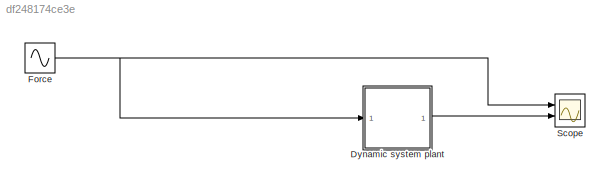
MODEL slx_df248174ce3e
KIND model
CONFIG AbsTol = auto
CONFIG EnableMultiTasking = off
CONFIG FixedStep = auto
CONFIG MaxStep = auto
CONFIG MinStep = auto
CONFIG RelTol = 1e-3
CONFIG SampleTimeConstraint = Unconstrained
CONFIG SolverName = VariableStepAuto
CONFIG StartTime = 0.0
CONFIG StopTime = 100
WORKSPACE source: mxarray member
WORKSPACE Sig: Simulink.Signal (value not decoded)
WORKSPACE b = 50
WORKSPACE k1 = 50
WORKSPACE k12 = 50
WORKSPACE m1 = 100
WORKSPACE m2 = 100
WORKSPACE out: Simulink.SimulationOutput (value not decoded)
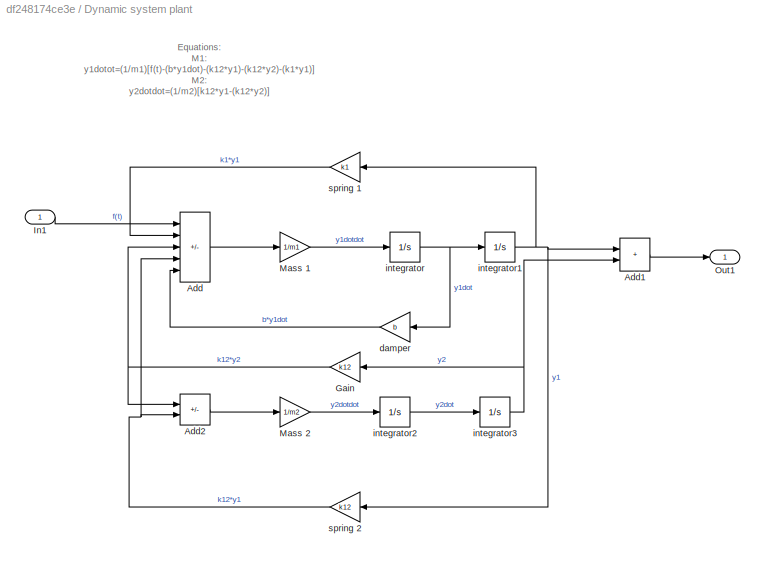
BLOCK [SubSystem] Dynamic system plant 
  Ports = [1, 1]
  RequestExecContextInheritance = off
BLOCK [Sum] Dynamic system plant /Add
  IconShape = rectangular
  Inputs = +-+--
  Ports = [5, 1]
BLOCK [Sum] Dynamic system plant /Add1
  IconShape = rectangular
  Ports = [2, 1]
BLOCK [Sum] Dynamic system plant /Add2
  IconShape = rectangular
  Inputs = -+
  Ports = [2, 1]
BLOCK [Gain] Dynamic system plant /Gain
  Gain = k12
BLOCK [Inport] Dynamic system plant /In1
BLOCK [Gain] Dynamic system plant /Mass 1
  Gain = 1/m1
BLOCK [Gain] Dynamic system plant /Mass 2
  Gain = 1/m2
BLOCK [Outport] Dynamic system plant /Out1
BLOCK [Gain] Dynamic system plant /damper
  Gain = b
BLOCK [Integrator] Dynamic system plant /integrator
  Ports = [1, 1]
BLOCK [Integrator] Dynamic system plant /integrator1
  Ports = [1, 1]
BLOCK [Integrator] Dynamic system plant /integrator2
  Ports = [1, 1]
BLOCK [Integrator] Dynamic system plant /integrator3
  Ports = [1, 1]
BLOCK [Gain] Dynamic system plant /spring 1
  Gain = k1
BLOCK [Gain] Dynamic system plant /spring 2
  Gain = k12
BLOCK [Sin] Force
  Amplitude = 2
  Frequency = 10
  Ports = [0, 1]
  SampleTime = 0
BLOCK [Scope] Scope
  Floating = off
  NumInputPorts = 2
  Ports = [2]
  ScopeSpecificationString = Simulink.scopes.TimeScopeBlockCfg('CurrentConfiguration', extmgr.ConfigurationSet(extmgr.Configuration('Core','General UI',true),extmgr.Configuration('Core','Source UI',true),extmgr.Configuration('Sources','WiredSimulink',true),extmgr.Configuration('Visuals','Time Domain',true,'SerializedDisplays',{struct('MinYLimReal','-2.49998','MaxYLimReal','2.5','YLabelReal','','MinYLimMag','0.00000','MaxYLimM...<+2001ch>
ANNOTATION Dynamic system plant : Equations : M1: y1dotot=(1/m1)[f(t)-(b*y1dot)-(k12*y1)-(k12*y2)-(k1*y1)] M2: y2dotdot=(1/m2)[k12*y1-(k12*y2)]
LINE Dynamic system plant /Add1:1 -> Dynamic system plant /Out1:1
LINE Dynamic system plant /Add2:1 -> Dynamic system plant /Mass 2:1
LINE Dynamic system plant /Add:1 -> Dynamic system plant /Mass 1:1
NET Dynamic system plant /Gain:1 -> Dynamic system plant /Add2:1, Dynamic system plant /Add:3
LINE Dynamic system plant /In1:1 -> Dynamic system plant /Add:1
LINE Dynamic system plant /Mass 1:1 -> Dynamic system plant /integrator:1
LINE Dynamic system plant /Mass 2:1 -> Dynamic system plant /integrator2:1
LINE Dynamic system plant /damper:1 -> Dynamic system plant /Add:5
NET Dynamic system plant /integrator1:1 -> Dynamic system plant /Add1:1, Dynamic system plant /spring 1:1, Dynamic system plant /spring 2:1
LINE Dynamic system plant /integrator2:1 -> Dynamic system plant /integrator3:1
NET Dynamic system plant /integrator3:1 -> Dynamic system plant /Add1:2, Dynamic system plant /Gain:1
NET Dynamic system plant /integrator:1 -> Dynamic system plant /damper:1, Dynamic system plant /integrator1:1
LINE Dynamic system plant /spring 1:1 -> Dynamic system plant /Add:2
NET Dynamic system plant /spring 2:1 -> Dynamic system plant /Add2:2, Dynamic system plant /Add:4
LINE Dynamic system plant :1 -> Scope:2
NET Force:1 -> Dynamic system plant :1, Scope:1
note: NET lines group one-source signal fan-out (src -> all destinations, sorted); 1:1 wires keep LINE
